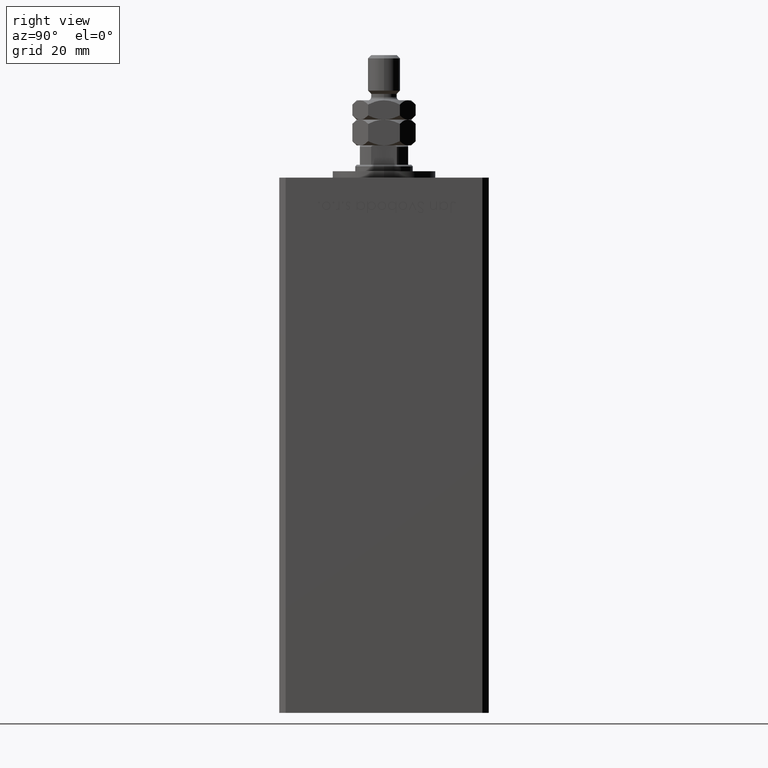
[diagram: clean part render]
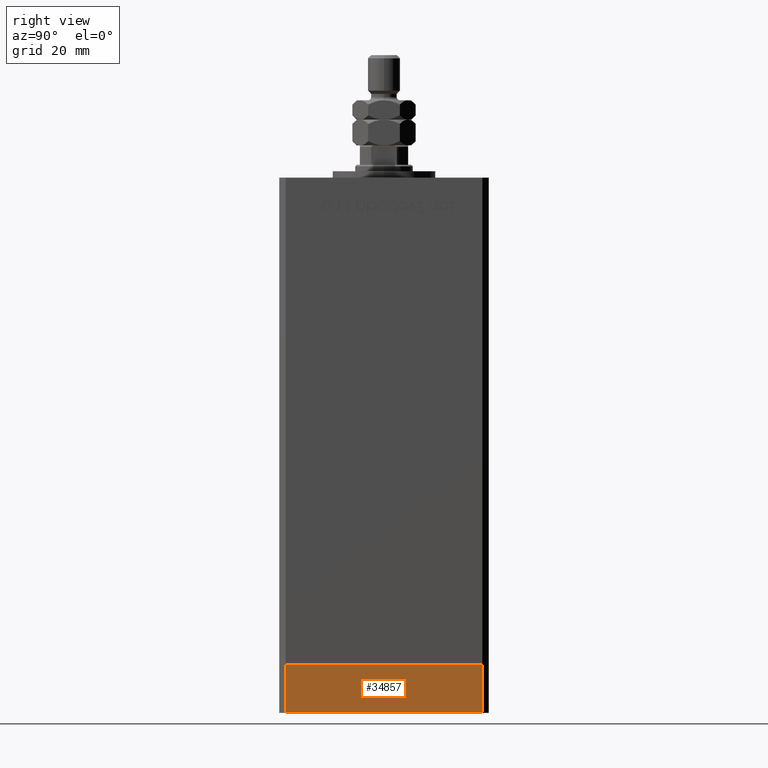
[diagram: same view with one face highlighted and labeled with its STEP entity id]
A machine part, right view. The second image highlights one B-rep face of the part: STEP entity #34857.
In plain terms, the highlighted planar face has unit normal (1, -0, 0).
Its self-contained STEP definition (entity closure, byte-faithful):
#2128 = DIRECTION ( 'NONE',  ( 4.550094363217855288E-16, -1.000000000000000000, 0.000000000000000000 ) ) ;
#4528 = EDGE_CURVE ( 'NONE', #42351, #33124, #43418, .T. ) ;
#5938 = DIRECTION ( 'NONE',  ( -1.000000000000000000, -4.550094363217855288E-16, 0.000000000000000000 ) ) ;
#6807 = VECTOR ( 'NONE', #38611, 1000.000000000000000 ) ;
#6949 = CARTESIAN_POINT ( 'NONE',  ( -37.50000000000001421, 30.49999999999998579, 0.000000000000000000 ) ) ;
#7272 = CARTESIAN_POINT ( 'NONE',  ( -37.49999999999998579, -30.50000000000001421, -15.00000000000000000 ) ) ;
#9717 = DIRECTION ( 'NONE',  ( 0.000000000000000000, 0.000000000000000000, 1.000000000000000000 ) ) ;
#10020 = PLANE ( 'NONE',  #17148 ) ;
#12468 = DIRECTION ( 'NONE',  ( 0.000000000000000000, 0.000000000000000000, 1.000000000000000000 ) ) ;
#13811 = FACE_OUTER_BOUND ( 'NONE', #34997, .T. ) ;
#13929 = ORIENTED_EDGE ( 'NONE', *, *, #41057, .F. ) ;
#15529 = VECTOR ( 'NONE', #39046, 1000.000000000000000 ) ;
#16507 = VECTOR ( 'NONE', #12468, 1000.000000000000000 ) ;
#17148 = AXIS2_PLACEMENT_3D ( 'NONE', #52139, #5938, #2128 ) ;
#20203 = ORIENTED_EDGE ( 'NONE', *, *, #42622, .F. ) ;
#21471 = CARTESIAN_POINT ( 'NONE',  ( -37.50000000000001421, 30.49999999999998579, -15.00000000000000000 ) ) ;
#21911 = ORIENTED_EDGE ( 'NONE', *, *, #4528, .T. ) ;
#22031 = LINE ( 'NONE', #21471, #6807 ) ;
#23536 = CARTESIAN_POINT ( 'NONE',  ( -37.50000000000001421, 30.49999999999998579, -15.00000000000000000 ) ) ;
#24000 = ORIENTED_EDGE ( 'NONE', *, *, #50350, .T. ) ;
#24048 = VERTEX_POINT ( 'NONE', #23536 ) ;
#24438 = LINE ( 'NONE', #40758, #16507 ) ;
#26520 = LINE ( 'NONE', #6949, #15529 ) ;
#28544 = VERTEX_POINT ( 'NONE', #34428 ) ;
#33124 = VERTEX_POINT ( 'NONE', #52521 ) ;
#34428 = CARTESIAN_POINT ( 'NONE',  ( -37.50000000000001421, 30.49999999999998579, 0.000000000000000000 ) ) ;
#34857 = ADVANCED_FACE ( 'NONE', ( #13811 ), #10020, .T. ) ;
#34997 = EDGE_LOOP ( 'NONE', ( #20203, #13929, #24000, #21911 ) ) ;
#38611 = DIRECTION ( 'NONE',  ( 4.550094363217855288E-16, -1.000000000000000000, 0.000000000000000000 ) ) ;
#39046 = DIRECTION ( 'NONE',  ( 4.550094363217855288E-16, -1.000000000000000000, 0.000000000000000000 ) ) ;
#39076 = CARTESIAN_POINT ( 'NONE',  ( -37.49999999999998579, -30.50000000000001421, -15.00000000000000000 ) ) ;
#40758 = CARTESIAN_POINT ( 'NONE',  ( -37.50000000000001421, 30.49999999999998579, -15.00000000000000000 ) ) ;
#41057 = EDGE_CURVE ( 'NONE', #24048, #28544, #24438, .T. ) ;
#42351 = VERTEX_POINT ( 'NONE', #7272 ) ;
#42622 = EDGE_CURVE ( 'NONE', #28544, #33124, #26520, .T. ) ;
#43418 = LINE ( 'NONE', #39076, #46080 ) ;
#46080 = VECTOR ( 'NONE', #9717, 1000.000000000000000 ) ;
#50350 = EDGE_CURVE ( 'NONE', #24048, #42351, #22031, .T. ) ;
#52139 = CARTESIAN_POINT ( 'NONE',  ( -37.50000000000001421, 30.49999999999998579, -15.00000000000000000 ) ) ;
#52521 = CARTESIAN_POINT ( 'NONE',  ( -37.49999999999998579, -30.50000000000001421, 0.000000000000000000 ) ) ;